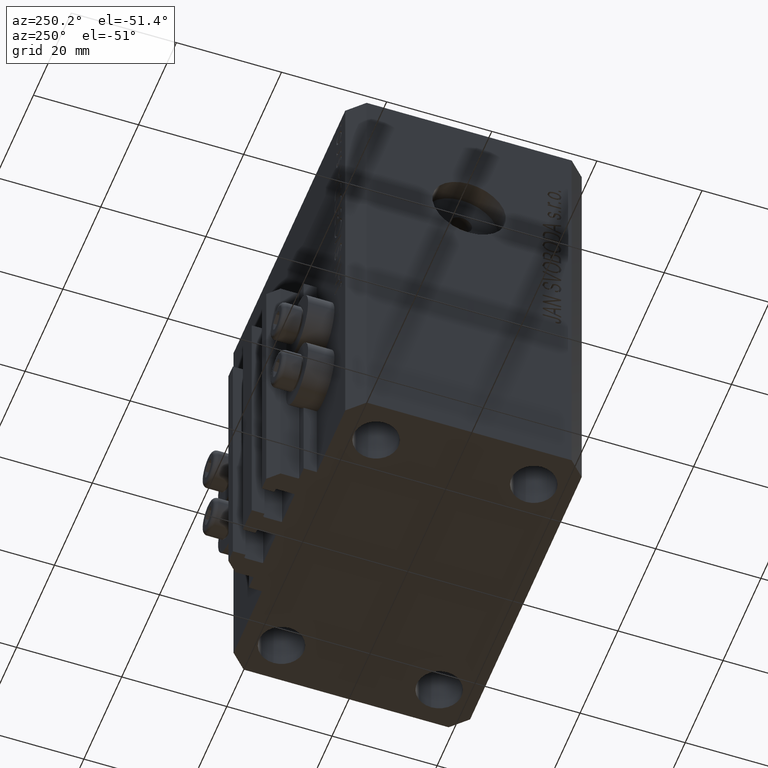
[diagram: clean part render]
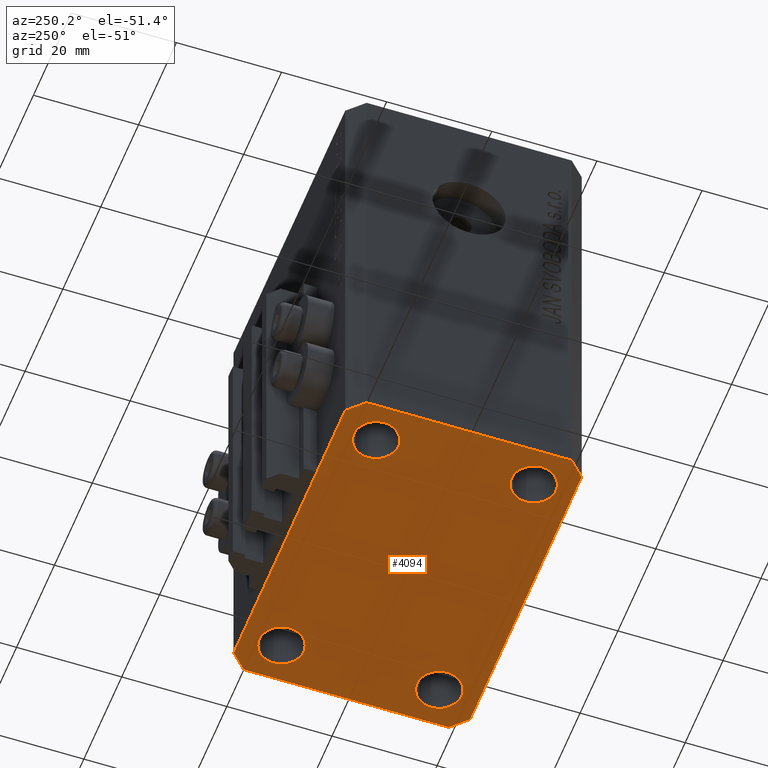
[diagram: same view with one face highlighted and labeled with its STEP entity id]
A machine part, auxiliary view. The second image highlights one B-rep face of the part: STEP entity #4094.
In plain terms, the highlighted planar face has unit normal (0, 0, 1).
Its self-contained STEP definition (entity closure, byte-faithful):
#96 = ORIENTED_EDGE ( 'NONE', *, *, #23169, .F. ) ;
#467 = EDGE_CURVE ( 'NONE', #44569, #39170, #37437, .T. ) ;
#712 = ORIENTED_EDGE ( 'NONE', *, *, #39211, .F. ) ;
#853 = CARTESIAN_POINT ( 'NONE',  ( -25.00000000000000000, 14.99999999999999645, -86.00000000000000000 ) ) ;
#1070 = EDGE_LOOP ( 'NONE', ( #18983, #3130, #9044, #24202, #32047, #11980, #44744, #6432 ) ) ;
#1245 = LINE ( 'NONE', #4816, #30082 ) ;
#1664 = AXIS2_PLACEMENT_3D ( 'NONE', #42327, #35902, #17009 ) ;
#1741 = CARTESIAN_POINT ( 'NONE',  ( 32.49999999999651124, -19.49999999999949196, -86.00000000000000000 ) ) ;
#2177 = AXIS2_PLACEMENT_3D ( 'NONE', #22069, #4606, #29242 ) ;
#2578 = CARTESIAN_POINT ( 'NONE',  ( -29.49999999999650413, 22.49999999999949907, -86.00000000000000000 ) ) ;
#2663 = DIRECTION ( 'NONE',  ( -0.000000000000000000, -0.000000000000000000, -1.000000000000000000 ) ) ;
#2775 = EDGE_LOOP ( 'NONE', ( #24248, #6785 ) ) ;
#3063 = VECTOR ( 'NONE', #6159, 1000.000000000000114 ) ;
#3130 = ORIENTED_EDGE ( 'NONE', *, *, #45718, .F. ) ;
#3334 = LINE ( 'NONE', #39649, #41103 ) ;
#3682 = CIRCLE ( 'NONE', #2177, 4.249999999976314058 ) ;
#3816 = LINE ( 'NONE', #21499, #31602 ) ;
#4094 = ADVANCED_FACE ( 'NONE', ( #6748, #31824, #32077, #31360, #46379 ), #24430, .F. ) ;
#4606 = DIRECTION ( 'NONE',  ( -0.000000000000000000, -0.000000000000000000, -1.000000000000000000 ) ) ;
#4816 = CARTESIAN_POINT ( 'NONE',  ( -29.49999999999650413, -22.49999999999949907, -86.00000000000000000 ) ) ;
#5275 = AXIS2_PLACEMENT_3D ( 'NONE', #853, #30918, #16102 ) ;
#5898 = AXIS2_PLACEMENT_3D ( 'NONE', #47062, #2663, #17216 ) ;
#6159 = DIRECTION ( 'NONE',  ( -0.7071067811865474617, -0.7071067811865474617, 0.000000000000000000 ) ) ;
#6189 = DIRECTION ( 'NONE',  ( -0.000000000000000000, -0.000000000000000000, -1.000000000000000000 ) ) ;
#6432 = ORIENTED_EDGE ( 'NONE', *, *, #29031, .F. ) ;
#6748 = FACE_BOUND ( 'NONE', #21893, .T. ) ;
#6772 = AXIS2_PLACEMENT_3D ( 'NONE', #36527, #40110, #43459 ) ;
#6785 = ORIENTED_EDGE ( 'NONE', *, *, #17514, .F. ) ;
#6831 = VERTEX_POINT ( 'NONE', #19846 ) ;
#7948 = EDGE_CURVE ( 'NONE', #39170, #44569, #39226, .T. ) ;
#8065 = LINE ( 'NONE', #44600, #26244 ) ;
#8170 = LINE ( 'NONE', #40678, #21214 ) ;
#8576 = CARTESIAN_POINT ( 'NONE',  ( -32.49999999999650413, -19.49999999999949907, -86.00000000000000000 ) ) ;
#9044 = ORIENTED_EDGE ( 'NONE', *, *, #46533, .F. ) ;
#11274 = EDGE_CURVE ( 'NONE', #39760, #26770, #18279, .T. ) ;
#11980 = ORIENTED_EDGE ( 'NONE', *, *, #32365, .F. ) ;
#11985 = CIRCLE ( 'NONE', #5898, 4.249999999957291053 ) ;
#12080 = AXIS2_PLACEMENT_3D ( 'NONE', #45628, #27027, #35134 ) ;
#12673 = EDGE_CURVE ( 'NONE', #30353, #38587, #1245, .T. ) ;
#13339 = CARTESIAN_POINT ( 'NONE',  ( -24.99999999999999289, -15.00000000000000355, -86.00000000000000000 ) ) ;
#13705 = DIRECTION ( 'NONE',  ( -0.000000000000000000, -0.000000000000000000, -1.000000000000000000 ) ) ;
#13876 = VERTEX_POINT ( 'NONE', #37786 ) ;
#14382 = CIRCLE ( 'NONE', #12080, 4.250000000021375790 ) ;
#15239 = CARTESIAN_POINT ( 'NONE',  ( 24.99999999999999289, -15.00000000000000355, -86.00000000000000000 ) ) ;
#15395 = CARTESIAN_POINT ( 'NONE',  ( -20.74999999995962341, -15.00000000000000355, -86.00000000000000000 ) ) ;
#15578 = DIRECTION ( 'NONE',  ( 0.000000000000000000, -1.000000000000000000, 0.000000000000000000 ) ) ;
#15789 = DIRECTION ( 'NONE',  ( 1.000000000000000000, 1.176083712526788232E-16, 0.000000000000000000 ) ) ;
#15841 = AXIS2_PLACEMENT_3D ( 'NONE', #15239, #29357, #40793 ) ;
#16102 = DIRECTION ( 'NONE',  ( 1.000000000000000000, 0.000000000000000000, 0.000000000000000000 ) ) ;
#16930 = LINE ( 'NONE', #8576, #42443 ) ;
#17009 = DIRECTION ( 'NONE',  ( 1.000000000000000000, 0.000000000000000000, -0.000000000000000000 ) ) ;
#17213 = ORIENTED_EDGE ( 'NONE', *, *, #467, .F. ) ;
#17216 = DIRECTION ( 'NONE',  ( 1.000000000000000000, 0.000000000000000000, 0.000000000000000000 ) ) ;
#17265 = CARTESIAN_POINT ( 'NONE',  ( -24.99999999999999289, -15.00000000000000355, -86.00000000000000000 ) ) ;
#17316 = DIRECTION ( 'NONE',  ( -1.000000000000000000, -3.528251137580330676E-16, 0.000000000000000000 ) ) ;
#17514 = EDGE_CURVE ( 'NONE', #41700, #34479, #11985, .T. ) ;
#18279 = LINE ( 'NONE', #43120, #39594 ) ;
#18285 = EDGE_CURVE ( 'NONE', #26260, #35491, #8170, .T. ) ;
#18330 = VERTEX_POINT ( 'NONE', #36642 ) ;
#18347 = VERTEX_POINT ( 'NONE', #1741 ) ;
#18612 = AXIS2_PLACEMENT_3D ( 'NONE', #13339, #6189, #23620 ) ;
#18794 = EDGE_CURVE ( 'NONE', #6831, #18330, #35713, .T. ) ;
#18983 = ORIENTED_EDGE ( 'NONE', *, *, #11274, .F. ) ;
#19546 = CARTESIAN_POINT ( 'NONE',  ( -29.25000000002137668, 14.99999999999999645, -86.00000000000000000 ) ) ;
#19846 = CARTESIAN_POINT ( 'NONE',  ( 20.75000000002367884, -15.00000000000000355, -86.00000000000000000 ) ) ;
#20304 = CARTESIAN_POINT ( 'NONE',  ( -20.74999999997862687, 14.99999999999999645, -86.00000000000000000 ) ) ;
#20773 = DIRECTION ( 'NONE',  ( 0.7071067811865483499, 0.7071067811865466846, 0.000000000000000000 ) ) ;
#21214 = VECTOR ( 'NONE', #15578, 1000.000000000000000 ) ;
#21499 = CARTESIAN_POINT ( 'NONE',  ( 32.49999999999651124, -19.49999999999949196, -86.00000000000000000 ) ) ;
#21893 = EDGE_LOOP ( 'NONE', ( #43309, #17213 ) ) ;
#22069 = CARTESIAN_POINT ( 'NONE',  ( 24.99999999999999289, -15.00000000000000355, -86.00000000000000000 ) ) ;
#22355 = ORIENTED_EDGE ( 'NONE', *, *, #25163, .F. ) ;
#23169 = EDGE_CURVE ( 'NONE', #18330, #6831, #3682, .T. ) ;
#23620 = DIRECTION ( 'NONE',  ( 1.000000000000000000, 0.000000000000000000, 0.000000000000000000 ) ) ;
#24065 = LINE ( 'NONE', #2578, #3063 ) ;
#24202 = ORIENTED_EDGE ( 'NONE', *, *, #24585, .F. ) ;
#24248 = ORIENTED_EDGE ( 'NONE', *, *, #24662, .F. ) ;
#24430 = PLANE ( 'NONE',  #1664 ) ;
#24585 = EDGE_CURVE ( 'NONE', #38587, #18347, #3334, .T. ) ;
#24610 = CARTESIAN_POINT ( 'NONE',  ( -32.49999999999650413, -19.49999999999949907, -86.00000000000000000 ) ) ;
#24662 = EDGE_CURVE ( 'NONE', #34479, #41700, #44127, .T. ) ;
#25163 = EDGE_CURVE ( 'NONE', #33448, #43864, #14382, .T. ) ;
#26244 = VECTOR ( 'NONE', #41034, 1000.000000000000000 ) ;
#26260 = VERTEX_POINT ( 'NONE', #35557 ) ;
#26770 = VERTEX_POINT ( 'NONE', #42134 ) ;
#26973 = CARTESIAN_POINT ( 'NONE',  ( 29.49999999999650413, -22.49999999999949196, -86.00000000000000000 ) ) ;
#27027 = DIRECTION ( 'NONE',  ( -0.000000000000000000, -0.000000000000000000, -1.000000000000000000 ) ) ;
#28082 = EDGE_LOOP ( 'NONE', ( #22355, #712 ) ) ;
#28334 = ORIENTED_EDGE ( 'NONE', *, *, #18794, .F. ) ;
#28511 = CARTESIAN_POINT ( 'NONE',  ( -29.49999999999650413, -22.49999999999949907, -86.00000000000000000 ) ) ;
#29031 = EDGE_CURVE ( 'NONE', #26770, #26260, #24065, .T. ) ;
#29227 = DIRECTION ( 'NONE',  ( 1.000000000000000000, 0.000000000000000000, 0.000000000000000000 ) ) ;
#29242 = DIRECTION ( 'NONE',  ( 1.000000000000000000, 0.000000000000000000, 0.000000000000000000 ) ) ;
#29357 = DIRECTION ( 'NONE',  ( -0.000000000000000000, -0.000000000000000000, -1.000000000000000000 ) ) ;
#30082 = VECTOR ( 'NONE', #15789, 1000.000000000000000 ) ;
#30353 = VERTEX_POINT ( 'NONE', #28511 ) ;
#30572 = CARTESIAN_POINT ( 'NONE',  ( 29.49999999999707967, 22.49999999999952038, -86.00000000000000000 ) ) ;
#30809 = CARTESIAN_POINT ( 'NONE',  ( -29.25000000004036593, -15.00000000000000355, -86.00000000000000000 ) ) ;
#30918 = DIRECTION ( 'NONE',  ( -0.000000000000000000, -0.000000000000000000, -1.000000000000000000 ) ) ;
#31144 = EDGE_LOOP ( 'NONE', ( #96, #28334 ) ) ;
#31360 = FACE_BOUND ( 'NONE', #28082, .T. ) ;
#31602 = VECTOR ( 'NONE', #46786, 1000.000000000000000 ) ;
#31824 = FACE_BOUND ( 'NONE', #31144, .T. ) ;
#32047 = ORIENTED_EDGE ( 'NONE', *, *, #12673, .F. ) ;
#32077 = FACE_BOUND ( 'NONE', #2775, .T. ) ;
#32140 = AXIS2_PLACEMENT_3D ( 'NONE', #17265, #13705, #29227 ) ;
#32365 = EDGE_CURVE ( 'NONE', #35491, #30353, #16930, .T. ) ;
#33448 = VERTEX_POINT ( 'NONE', #20304 ) ;
#34479 = VERTEX_POINT ( 'NONE', #35903 ) ;
#35134 = DIRECTION ( 'NONE',  ( 1.000000000000000000, 0.000000000000000000, 0.000000000000000000 ) ) ;
#35491 = VERTEX_POINT ( 'NONE', #24610 ) ;
#35557 = CARTESIAN_POINT ( 'NONE',  ( -32.49999999999650413, 19.49999999999949907, -86.00000000000000000 ) ) ;
#35713 = CIRCLE ( 'NONE', #15841, 4.249999999976314058 ) ;
#35902 = DIRECTION ( 'NONE',  ( 0.000000000000000000, 0.000000000000000000, 1.000000000000000000 ) ) ;
#35903 = CARTESIAN_POINT ( 'NONE',  ( 29.24999999995729283, 14.99999999999999289, -86.00000000000000000 ) ) ;
#36527 = CARTESIAN_POINT ( 'NONE',  ( 25.00000000000000000, 14.99999999999999289, -86.00000000000000000 ) ) ;
#36642 = CARTESIAN_POINT ( 'NONE',  ( 29.24999999997631051, -15.00000000000000355, -86.00000000000000000 ) ) ;
#37437 = CIRCLE ( 'NONE', #32140, 4.250000000040370374 ) ;
#37786 = CARTESIAN_POINT ( 'NONE',  ( 32.49999999999702993, 19.49999999999945999, -86.00000000000000000 ) ) ;
#38587 = VERTEX_POINT ( 'NONE', #26973 ) ;
#39170 = VERTEX_POINT ( 'NONE', #15395 ) ;
#39211 = EDGE_CURVE ( 'NONE', #43864, #33448, #42644, .T. ) ;
#39226 = CIRCLE ( 'NONE', #18612, 4.250000000040370374 ) ;
#39594 = VECTOR ( 'NONE', #17316, 1000.000000000000000 ) ;
#39649 = CARTESIAN_POINT ( 'NONE',  ( 29.49999999999650413, -22.49999999999949196, -86.00000000000000000 ) ) ;
#39760 = VERTEX_POINT ( 'NONE', #30572 ) ;
#40110 = DIRECTION ( 'NONE',  ( -0.000000000000000000, -0.000000000000000000, -1.000000000000000000 ) ) ;
#40678 = CARTESIAN_POINT ( 'NONE',  ( -32.49999999999650413, 19.49999999999949907, -86.00000000000000000 ) ) ;
#40793 = DIRECTION ( 'NONE',  ( 1.000000000000000000, 0.000000000000000000, 0.000000000000000000 ) ) ;
#41034 = DIRECTION ( 'NONE',  ( -0.7071067811865344721, 0.7071067811865606734, 0.000000000000000000 ) ) ;
#41103 = VECTOR ( 'NONE', #20773, 1000.000000000000000 ) ;
#41700 = VERTEX_POINT ( 'NONE', #45491 ) ;
#42134 = CARTESIAN_POINT ( 'NONE',  ( -29.49999999999650413, 22.49999999999949907, -86.00000000000000000 ) ) ;
#42246 = DIRECTION ( 'NONE',  ( 0.7071067811865474617, -0.7071067811865474617, 0.000000000000000000 ) ) ;
#42327 = CARTESIAN_POINT ( 'NONE',  ( 0.000000000000000000, 0.000000000000000000, -86.00000000000000000 ) ) ;
#42443 = VECTOR ( 'NONE', #42246, 1000.000000000000114 ) ;
#42644 = CIRCLE ( 'NONE', #5275, 4.250000000021375790 ) ;
#43120 = CARTESIAN_POINT ( 'NONE',  ( 29.49999999999707967, 22.49999999999952038, -86.00000000000000000 ) ) ;
#43309 = ORIENTED_EDGE ( 'NONE', *, *, #7948, .F. ) ;
#43459 = DIRECTION ( 'NONE',  ( 1.000000000000000000, 0.000000000000000000, 0.000000000000000000 ) ) ;
#43864 = VERTEX_POINT ( 'NONE', #19546 ) ;
#44127 = CIRCLE ( 'NONE', #6772, 4.249999999957291053 ) ;
#44569 = VERTEX_POINT ( 'NONE', #30809 ) ;
#44600 = CARTESIAN_POINT ( 'NONE',  ( 32.49999999999702993, 19.49999999999945999, -86.00000000000000000 ) ) ;
#44744 = ORIENTED_EDGE ( 'NONE', *, *, #18285, .F. ) ;
#45491 = CARTESIAN_POINT ( 'NONE',  ( 20.75000000004271072, 14.99999999999999289, -86.00000000000000000 ) ) ;
#45628 = CARTESIAN_POINT ( 'NONE',  ( -25.00000000000000000, 14.99999999999999645, -86.00000000000000000 ) ) ;
#45718 = EDGE_CURVE ( 'NONE', #13876, #39760, #8065, .T. ) ;
#46379 = FACE_OUTER_BOUND ( 'NONE', #1070, .T. ) ;
#46533 = EDGE_CURVE ( 'NONE', #18347, #13876, #3816, .T. ) ;
#46786 = DIRECTION ( 'NONE',  ( 1.334402673828349134E-14, 1.000000000000000000, 0.000000000000000000 ) ) ;
#47062 = CARTESIAN_POINT ( 'NONE',  ( 25.00000000000000000, 14.99999999999999289, -86.00000000000000000 ) ) ;